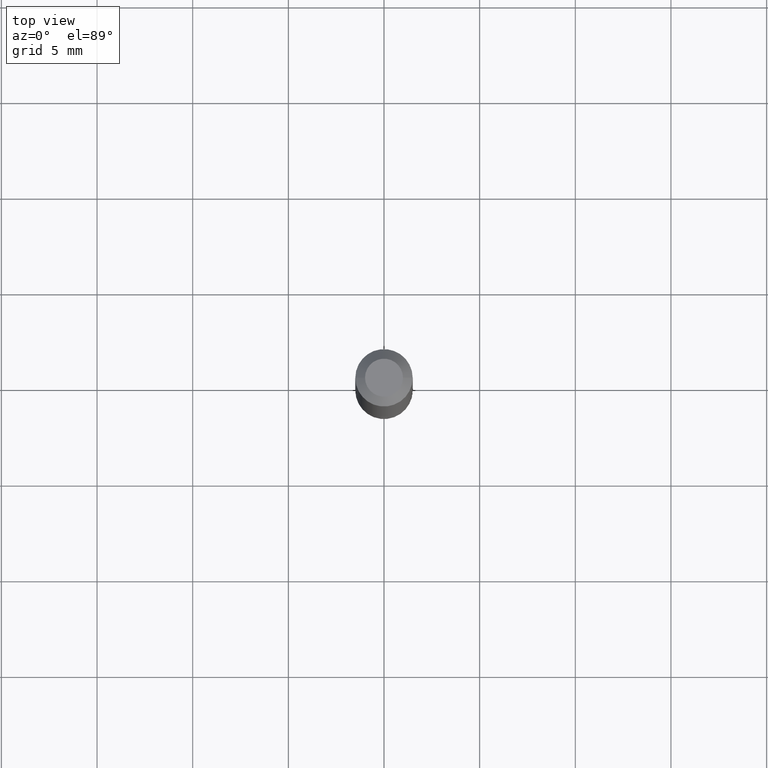
[diagram: clean part render]
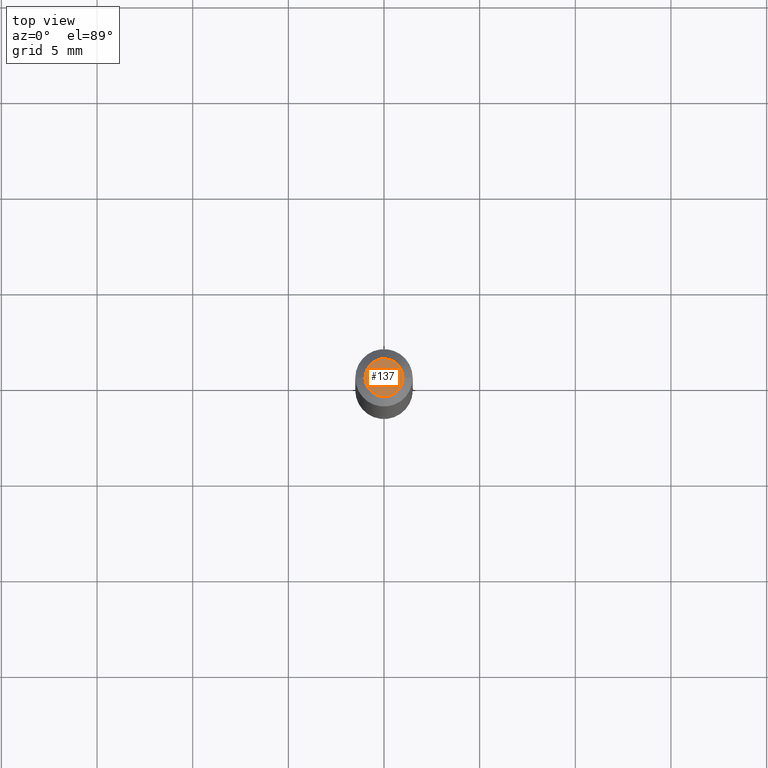
[diagram: same view with one face highlighted and labeled with its STEP entity id]
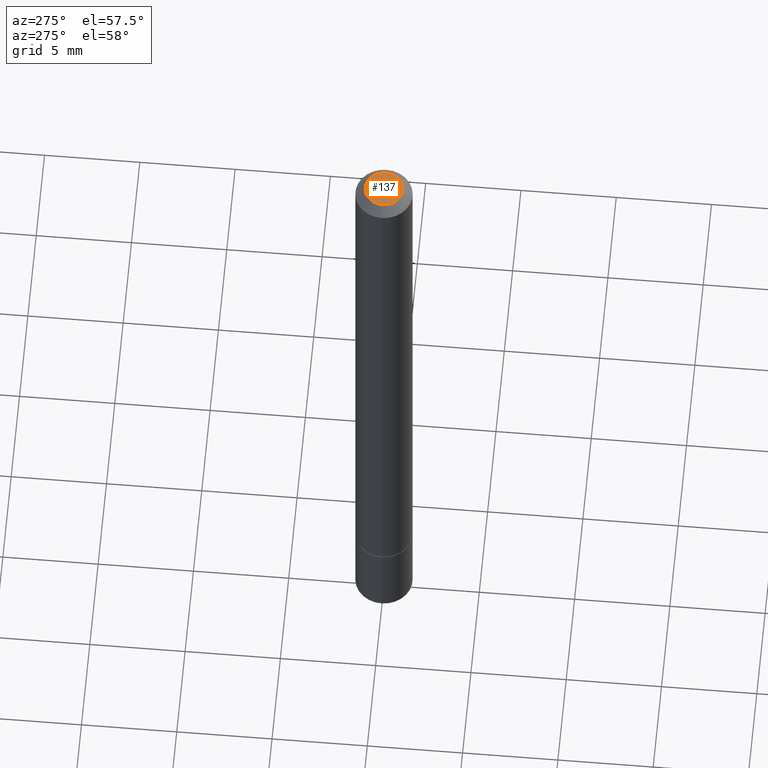
[diagram: same view with one face highlighted and labeled with its STEP entity id]
A machine part, top view. The second image highlights one B-rep face of the part: STEP entity #137.
A second angle (auxiliary view) of the same face is appended — the face is thin or edge-on in the first view.
In plain terms, the highlighted planar face has unit normal (0, -0, -1).
Its self-contained STEP definition (entity closure, byte-faithful):
#1 = DIRECTION ( 'NONE',  ( 1.000000000000000000, -6.982962677686266711E-15, 4.873707401586867728E-29 ) ) ;
#22 = DIRECTION ( 'NONE',  ( 1.000000000000000000, -6.982962677686266711E-15, 4.873707401586867728E-29 ) ) ;
#24 = AXIS2_PLACEMENT_3D ( 'NONE', #50, #145, #112 ) ;
#50 = CARTESIAN_POINT ( 'NONE',  ( 2.726846925636483731E-16, 0.03904999999999995974, -1.576849087323267144E-16 ) ) ;
#95 = CIRCLE ( 'NONE', #143, 0.03904999999999995974 ) ;
#104 = EDGE_CURVE ( 'NONE', #302, #226, #95, .T. ) ;
#112 = DIRECTION ( 'NONE',  ( -1.000000000000000000, 6.982962677686265922E-15, -4.876176775795935793E-29 ) ) ;
#129 = CIRCLE ( 'NONE', #354, 0.03904999999999995974 ) ;
#137 = ADVANCED_FACE ( 'NONE', ( #334 ), #327, .F. ) ;
#143 = AXIS2_PLACEMENT_3D ( 'NONE', #220, #326, #1 ) ;
#145 = DIRECTION ( 'NONE',  ( 2.438088387897960049E-29, -3.491481338843145188E-15, -1.000000000000000000 ) ) ;
#167 = EDGE_CURVE ( 'NONE', #226, #302, #129, .T. ) ;
#176 = CARTESIAN_POINT ( 'NONE',  ( 0.03904999999999995974, -3.714222401791248901E-16, -4.268512490100186330E-17 ) ) ;
#180 = EDGE_LOOP ( 'NONE', ( #224, #241 ) ) ;
#220 = CARTESIAN_POINT ( 'NONE',  ( 1.043851414335219781E-45, -1.490343170380447145E-31, -4.268512490100411279E-17 ) ) ;
#224 = ORIENTED_EDGE ( 'NONE', *, *, #167, .T. ) ;
#226 = VERTEX_POINT ( 'NONE', #335 ) ;
#241 = ORIENTED_EDGE ( 'NONE', *, *, #104, .T. ) ;
#270 = DIRECTION ( 'NONE',  ( -2.445468806185136597E-29, 3.491481338843145583E-15, 1.000000000000000000 ) ) ;
#272 = CARTESIAN_POINT ( 'NONE',  ( 1.043851414335219781E-45, -1.490343170380447145E-31, -4.268512490100411279E-17 ) ) ;
#302 = VERTEX_POINT ( 'NONE', #176 ) ;
#326 = DIRECTION ( 'NONE',  ( -2.445468806185136597E-29, 3.491481338843145583E-15, 1.000000000000000000 ) ) ;
#327 = PLANE ( 'NONE',  #24 ) ;
#334 = FACE_OUTER_BOUND ( 'NONE', #180, .T. ) ;
#335 = CARTESIAN_POINT ( 'NONE',  ( -0.03904999999999995974, 3.075995059520794305E-16, -4.268512490100614657E-17 ) ) ;
#354 = AXIS2_PLACEMENT_3D ( 'NONE', #272, #270, #22 ) ;